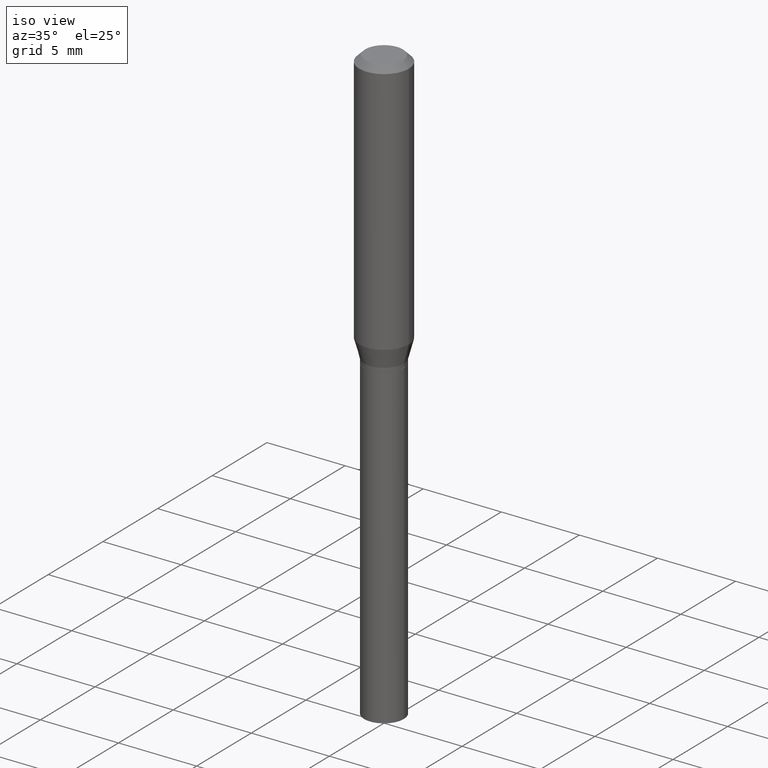
[diagram: clean part render]
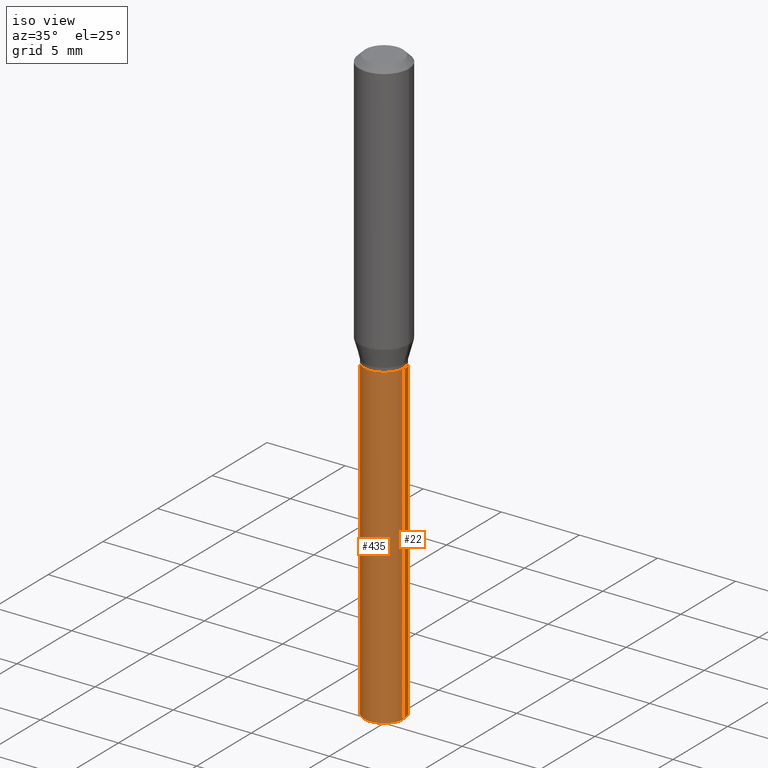
[diagram: same view with one multi-face feature highlighted, each face labeled with its STEP entity id]
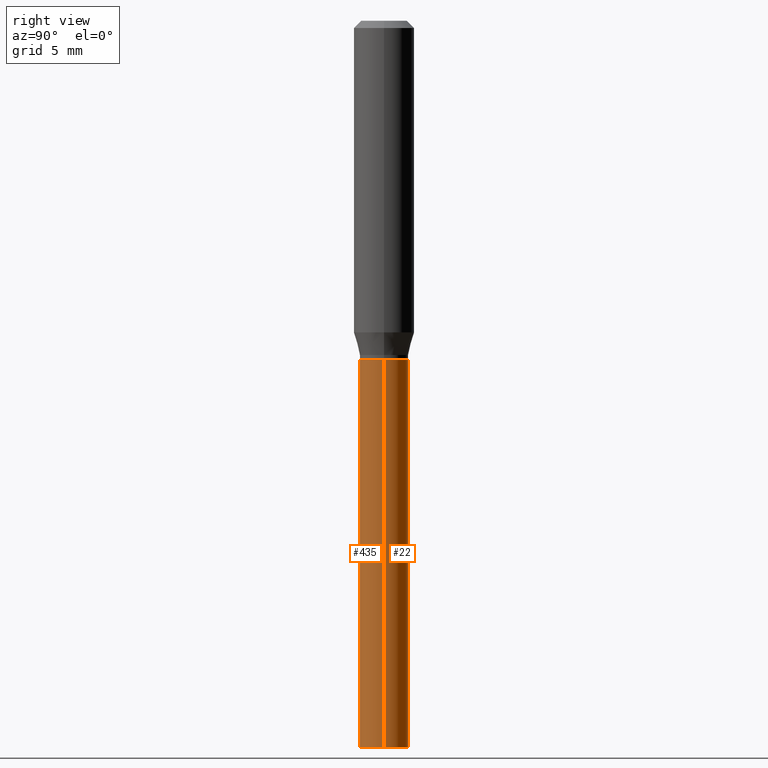
[diagram: same view with one multi-face feature highlighted, each face labeled with its STEP entity id]
A machine part, iso view. The highlighted faces form ONE feature: a constant-radius fillet chain: 2 tangent blend faces with common blend radius 1.27 mm. The faces share edges in the B-rep.
A second angle (right view) of the same feature is appended — it is thin or edge-on in the first view.
Their STEP definitions:
[1] entity #22 (Cylinder):
#5 = CARTESIAN_POINT ( 'NONE',  ( 0.05000000000000000278, -5.586370142149032301E-15, -1.500000000000000222 ) ) ;
#6 = CARTESIAN_POINT ( 'NONE',  ( -0.05000000000000000278, -3.485358104847410087E-15, -0.7000000000000000666 ) ) ;
#16 = EDGE_CURVE ( 'NONE', #233, #166, #140, .T. ) ;
#22 = ADVANCED_FACE ( 'NONE', ( #69 ), #466, .T. ) ;
#45 = EDGE_CURVE ( 'NONE', #276, #233, #107, .T. ) ;
#49 = DIRECTION ( 'NONE',  ( -2.445468806185136877E-29, 3.491481338843145188E-15, 1.000000000000000000 ) ) ;
#69 = FACE_OUTER_BOUND ( 'NONE', #121, .T. ) ;
#78 = LINE ( 'NONE', #195, #97 ) ;
#97 = VECTOR ( 'NONE', #49, 39.37007874015748143 ) ;
#101 = DIRECTION ( 'NONE',  ( -2.445468806185136597E-29, 3.491481338843145583E-15, 1.000000000000000000 ) ) ;
#107 = CIRCLE ( 'NONE', #168, 0.05000000000000000278 ) ;
#121 = EDGE_LOOP ( 'NONE', ( #456, #382, #237, #205 ) ) ;
#132 = DIRECTION ( 'NONE',  ( -2.445468806185136597E-29, 3.491481338843145583E-15, 1.000000000000000000 ) ) ;
#140 = LINE ( 'NONE', #395, #453 ) ;
#166 = VERTEX_POINT ( 'NONE', #6 ) ;
#168 = AXIS2_PLACEMENT_3D ( 'NONE', #252, #101, #320 ) ;
#184 = DIRECTION ( 'NONE',  ( 1.000000000000000000, -6.982962677686267499E-15, 4.876176775795936353E-29 ) ) ;
#195 = CARTESIAN_POINT ( 'NONE',  ( 0.05000000000000000278, -3.491481338843133848E-16, 2.438088387897968247E-30 ) ) ;
#205 = ORIENTED_EDGE ( 'NONE', *, *, #210, .F. ) ;
#210 = EDGE_CURVE ( 'NONE', #276, #212, #78, .T. ) ;
#212 = VERTEX_POINT ( 'NONE', #327 ) ;
#220 = DIRECTION ( 'NONE',  ( -2.445468806185136877E-29, 3.491481338843145188E-15, 1.000000000000000000 ) ) ;
#224 = CARTESIAN_POINT ( 'NONE',  ( 0.000000000000000000, 0.000000000000000000, 0.000000000000000000 ) ) ;
#233 = VERTEX_POINT ( 'NONE', #399 ) ;
#237 = ORIENTED_EDGE ( 'NONE', *, *, #406, .F. ) ;
#252 = CARTESIAN_POINT ( 'NONE',  ( 3.668203209277704895E-29, -5.237222008264718177E-15, -1.500000000000000222 ) ) ;
#254 = AXIS2_PLACEMENT_3D ( 'NONE', #224, #464, #184 ) ;
#276 = VERTEX_POINT ( 'NONE', #5 ) ;
#303 = CIRCLE ( 'NONE', #309, 0.05000000000000000278 ) ;
#309 = AXIS2_PLACEMENT_3D ( 'NONE', #457, #132, #310 ) ;
#310 = DIRECTION ( 'NONE',  ( 1.000000000000000000, -6.982962677686264344E-15, 0.000000000000000000 ) ) ;
#320 = DIRECTION ( 'NONE',  ( 1.000000000000000000, -6.982962677686274599E-15, 0.000000000000000000 ) ) ;
#327 = CARTESIAN_POINT ( 'NONE',  ( 0.05000000000000000278, -2.793185071074515362E-15, -0.7000000000000000666 ) ) ;
#382 = ORIENTED_EDGE ( 'NONE', *, *, #16, .T. ) ;
#395 = CARTESIAN_POINT ( 'NONE',  ( -0.05000000000000000278, 3.552713678800501127E-16, -2.459467545127453311E-30 ) ) ;
#399 = CARTESIAN_POINT ( 'NONE',  ( -0.05000000000000000278, -3.485358104847410087E-15, -1.500000000000000222 ) ) ;
#406 = EDGE_CURVE ( 'NONE', #212, #166, #303, .T. ) ;
#453 = VECTOR ( 'NONE', #220, 39.37007874015748143 ) ;
#456 = ORIENTED_EDGE ( 'NONE', *, *, #45, .T. ) ;
#457 = CARTESIAN_POINT ( 'NONE',  ( 1.711828164329595562E-29, -2.444036937190202026E-15, -0.7000000000000000666 ) ) ;
#464 = DIRECTION ( 'NONE',  ( -2.445468806185136597E-29, 3.491481338843145583E-15, 1.000000000000000000 ) ) ;
#466 = CYLINDRICAL_SURFACE ( 'NONE', #254, 0.05000000000000000278 ) ;
[2] entity #435 (Cylinder):
#4 = DIRECTION ( 'NONE',  ( -2.445468806185136597E-29, 3.491481338843145583E-15, 1.000000000000000000 ) ) ;
#5 = CARTESIAN_POINT ( 'NONE',  ( 0.05000000000000000278, -5.586370142149032301E-15, -1.500000000000000222 ) ) ;
#6 = CARTESIAN_POINT ( 'NONE',  ( -0.05000000000000000278, -3.485358104847410087E-15, -0.7000000000000000666 ) ) ;
#16 = EDGE_CURVE ( 'NONE', #233, #166, #140, .T. ) ;
#18 = CARTESIAN_POINT ( 'NONE',  ( 0.000000000000000000, 0.000000000000000000, 0.000000000000000000 ) ) ;
#36 = CARTESIAN_POINT ( 'NONE',  ( 3.668203209277704895E-29, -5.237222008264718177E-15, -1.500000000000000222 ) ) ;
#49 = DIRECTION ( 'NONE',  ( -2.445468806185136877E-29, 3.491481338843145188E-15, 1.000000000000000000 ) ) ;
#57 = DIRECTION ( 'NONE',  ( 1.000000000000000000, -6.982962677686267499E-15, 4.876176775795936353E-29 ) ) ;
#78 = LINE ( 'NONE', #195, #97 ) ;
#83 = AXIS2_PLACEMENT_3D ( 'NONE', #216, #4, #357 ) ;
#91 = EDGE_CURVE ( 'NONE', #166, #212, #385, .T. ) ;
#95 = CYLINDRICAL_SURFACE ( 'NONE', #98, 0.05000000000000000278 ) ;
#97 = VECTOR ( 'NONE', #49, 39.37007874015748143 ) ;
#98 = AXIS2_PLACEMENT_3D ( 'NONE', #18, #246, #57 ) ;
#119 = ORIENTED_EDGE ( 'NONE', *, *, #134, .T. ) ;
#128 = FACE_OUTER_BOUND ( 'NONE', #331, .T. ) ;
#134 = EDGE_CURVE ( 'NONE', #233, #276, #415, .T. ) ;
#140 = LINE ( 'NONE', #395, #453 ) ;
#145 = AXIS2_PLACEMENT_3D ( 'NONE', #36, #362, #183 ) ;
#162 = ORIENTED_EDGE ( 'NONE', *, *, #16, .F. ) ;
#166 = VERTEX_POINT ( 'NONE', #6 ) ;
#172 = ORIENTED_EDGE ( 'NONE', *, *, #91, .F. ) ;
#183 = DIRECTION ( 'NONE',  ( 1.000000000000000000, -6.982962677686274599E-15, 0.000000000000000000 ) ) ;
#195 = CARTESIAN_POINT ( 'NONE',  ( 0.05000000000000000278, -3.491481338843133848E-16, 2.438088387897968247E-30 ) ) ;
#210 = EDGE_CURVE ( 'NONE', #276, #212, #78, .T. ) ;
#212 = VERTEX_POINT ( 'NONE', #327 ) ;
#216 = CARTESIAN_POINT ( 'NONE',  ( 1.711828164329595562E-29, -2.444036937190202026E-15, -0.7000000000000000666 ) ) ;
#220 = DIRECTION ( 'NONE',  ( -2.445468806185136877E-29, 3.491481338843145188E-15, 1.000000000000000000 ) ) ;
#233 = VERTEX_POINT ( 'NONE', #399 ) ;
#246 = DIRECTION ( 'NONE',  ( -2.445468806185136597E-29, 3.491481338843145583E-15, 1.000000000000000000 ) ) ;
#271 = ORIENTED_EDGE ( 'NONE', *, *, #210, .T. ) ;
#276 = VERTEX_POINT ( 'NONE', #5 ) ;
#327 = CARTESIAN_POINT ( 'NONE',  ( 0.05000000000000000278, -2.793185071074515362E-15, -0.7000000000000000666 ) ) ;
#331 = EDGE_LOOP ( 'NONE', ( #162, #119, #271, #172 ) ) ;
#357 = DIRECTION ( 'NONE',  ( 1.000000000000000000, -6.982962677686264344E-15, 0.000000000000000000 ) ) ;
#362 = DIRECTION ( 'NONE',  ( -2.445468806185136597E-29, 3.491481338843145583E-15, 1.000000000000000000 ) ) ;
#385 = CIRCLE ( 'NONE', #83, 0.05000000000000000278 ) ;
#395 = CARTESIAN_POINT ( 'NONE',  ( -0.05000000000000000278, 3.552713678800501127E-16, -2.459467545127453311E-30 ) ) ;
#399 = CARTESIAN_POINT ( 'NONE',  ( -0.05000000000000000278, -3.485358104847410087E-15, -1.500000000000000222 ) ) ;
#415 = CIRCLE ( 'NONE', #145, 0.05000000000000000278 ) ;
#435 = ADVANCED_FACE ( 'NONE', ( #128 ), #95, .T. ) ;
#453 = VECTOR ( 'NONE', #220, 39.37007874015748143 ) ;